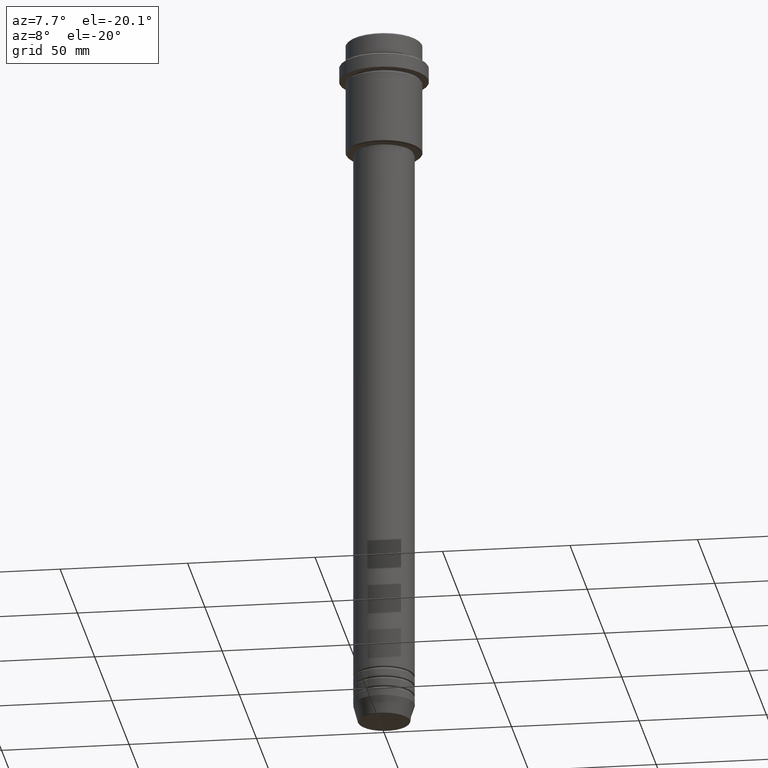
[diagram: clean part render]
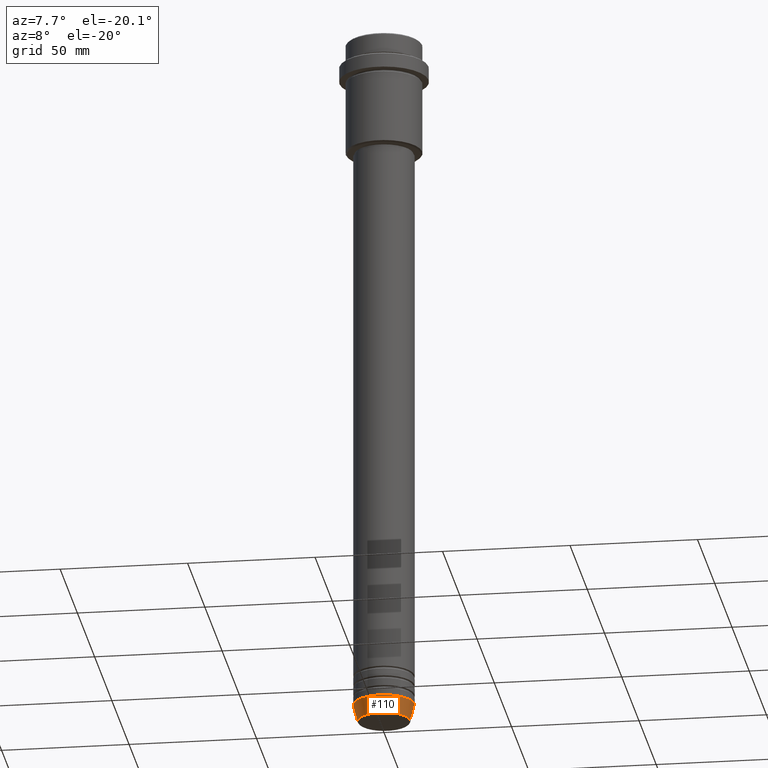
[diagram: same view with one face highlighted and labeled with its STEP entity id]
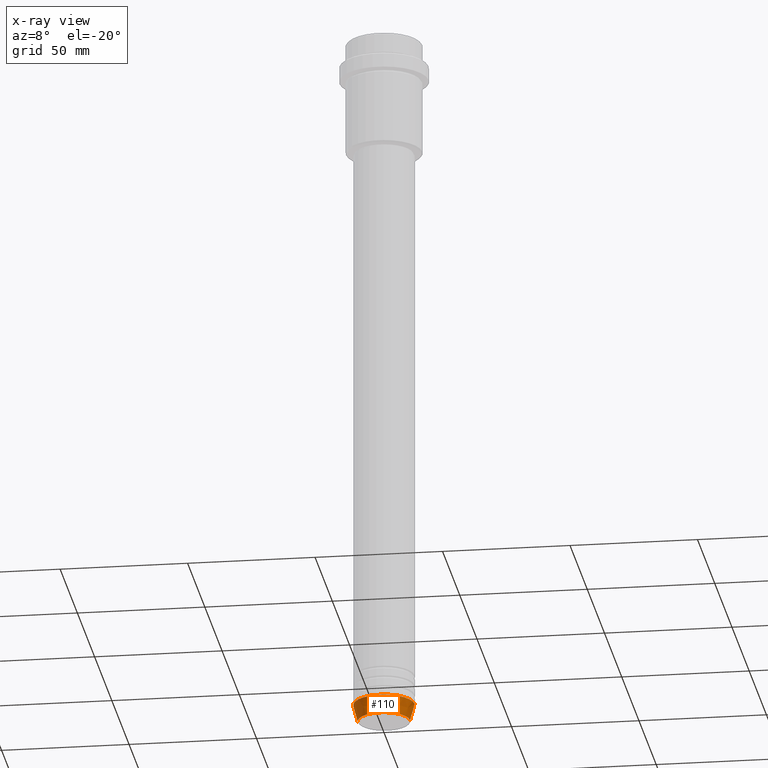
[diagram: x-ray of the same camera — body ghosted, the highlighted face saturated]
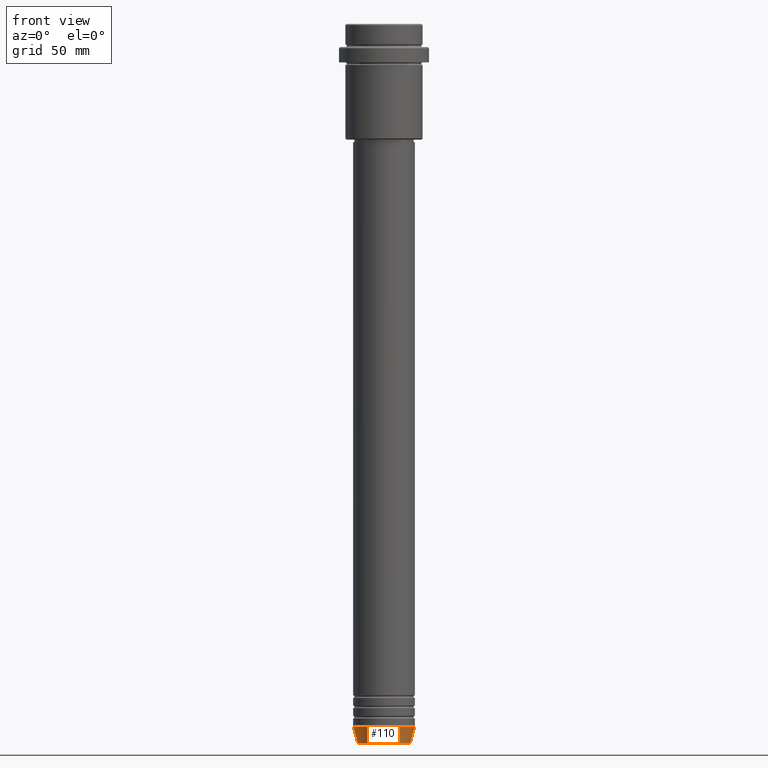
[diagram: same view with one face highlighted and labeled with its STEP entity id]
A machine part, auxiliary view. The second image highlights one B-rep face of the part: STEP entity #110.
The next image is the same camera in x-ray: the body ghosted, the highlighted face saturated — about 0% of this face is hidden behind the body in this view.
A second angle (front view) of the same face is appended — the face is thin or edge-on in the first view.
In plain terms, the highlighted conical surface has half-angle 15 deg.
Its self-contained STEP definition (entity closure, byte-faithful):
#36 = VERTEX_POINT ( 'NONE', #164 ) ;
#70 = EDGE_CURVE ( 'NONE', #36, #501, #833, .T. ) ;
#71 = FACE_OUTER_BOUND ( 'NONE', #1175, .T. ) ;
#72 = CARTESIAN_POINT ( 'NONE',  ( 0.000000000000000000, 0.000000000000000000, -273.0000000000000000 ) ) ;
#73 = CIRCLE ( 'NONE', #772, 10.22365507213719127 ) ;
#77 = CARTESIAN_POINT ( 'NONE',  ( 10.22365507213719127, 0.000000000000000000, -279.6294095225512706 ) ) ;
#110 = ADVANCED_FACE ( 'NONE', ( #71 ), #1057, .T. ) ;
#147 = VECTOR ( 'NONE', #290, 1000.000000000000000 ) ;
#162 = DIRECTION ( 'NONE',  ( 1.000000000000000000, 0.000000000000000000, 0.000000000000000000 ) ) ;
#164 = CARTESIAN_POINT ( 'NONE',  ( -10.22365507213719127, 1.360806402472382744E-15, -279.6294095225512706 ) ) ;
#175 = DIRECTION ( 'NONE',  ( -0.000000000000000000, -0.000000000000000000, 1.000000000000000000 ) ) ;
#216 = VERTEX_POINT ( 'NONE', #714 ) ;
#279 = EDGE_CURVE ( 'NONE', #36, #891, #73, .T. ) ;
#290 = DIRECTION ( 'NONE',  ( -0.2588190451025213501, 3.169619151431772337E-17, 0.9659258262890680902 ) ) ;
#293 = ORIENTED_EDGE ( 'NONE', *, *, #620, .T. ) ;
#306 = AXIS2_PLACEMENT_3D ( 'NONE', #373, #937, #162 ) ;
#373 = CARTESIAN_POINT ( 'NONE',  ( 0.000000000000000000, 0.000000000000000000, -273.0000000000000000 ) ) ;
#431 = AXIS2_PLACEMENT_3D ( 'NONE', #72, #175, #1149 ) ;
#435 = CARTESIAN_POINT ( 'NONE',  ( 12.00000000000000000, 0.000000000000000000, -273.0000000000000000 ) ) ;
#501 = VERTEX_POINT ( 'NONE', #619 ) ;
#523 = ORIENTED_EDGE ( 'NONE', *, *, #70, .F. ) ;
#577 = CARTESIAN_POINT ( 'NONE',  ( 0.000000000000000000, 0.000000000000000000, -279.6294095225512706 ) ) ;
#619 = CARTESIAN_POINT ( 'NONE',  ( -12.00000000000000000, 1.469576158976823947E-15, -273.0000000000000000 ) ) ;
#620 = EDGE_CURVE ( 'NONE', #891, #216, #1405, .T. ) ;
#645 = DIRECTION ( 'NONE',  ( 0.2588190451025213501, 0.000000000000000000, 0.9659258262890680902 ) ) ;
#693 = DIRECTION ( 'NONE',  ( -0.000000000000000000, -0.000000000000000000, 1.000000000000000000 ) ) ;
#714 = CARTESIAN_POINT ( 'NONE',  ( 12.00000000000000000, 0.000000000000000000, -273.0000000000000000 ) ) ;
#731 = CARTESIAN_POINT ( 'NONE',  ( -12.00000000000000000, 1.469576158976823947E-15, -273.0000000000000000 ) ) ;
#749 = VECTOR ( 'NONE', #645, 1000.000000000000000 ) ;
#750 = CIRCLE ( 'NONE', #431, 12.00000000000000000 ) ;
#772 = AXIS2_PLACEMENT_3D ( 'NONE', #577, #693, #1119 ) ;
#833 = LINE ( 'NONE', #731, #147 ) ;
#891 = VERTEX_POINT ( 'NONE', #77 ) ;
#936 = EDGE_CURVE ( 'NONE', #501, #216, #750, .T. ) ;
#937 = DIRECTION ( 'NONE',  ( -0.000000000000000000, -0.000000000000000000, 1.000000000000000000 ) ) ;
#1057 = CONICAL_SURFACE ( 'NONE', #306, 12.00000000000000000, 0.2617993877991500740 ) ;
#1119 = DIRECTION ( 'NONE',  ( 1.000000000000000000, 0.000000000000000000, 0.000000000000000000 ) ) ;
#1149 = DIRECTION ( 'NONE',  ( 1.000000000000000000, 0.000000000000000000, 0.000000000000000000 ) ) ;
#1175 = EDGE_LOOP ( 'NONE', ( #523, #1396, #293, #1236 ) ) ;
#1236 = ORIENTED_EDGE ( 'NONE', *, *, #936, .F. ) ;
#1396 = ORIENTED_EDGE ( 'NONE', *, *, #279, .T. ) ;
#1405 = LINE ( 'NONE', #435, #749 ) ;